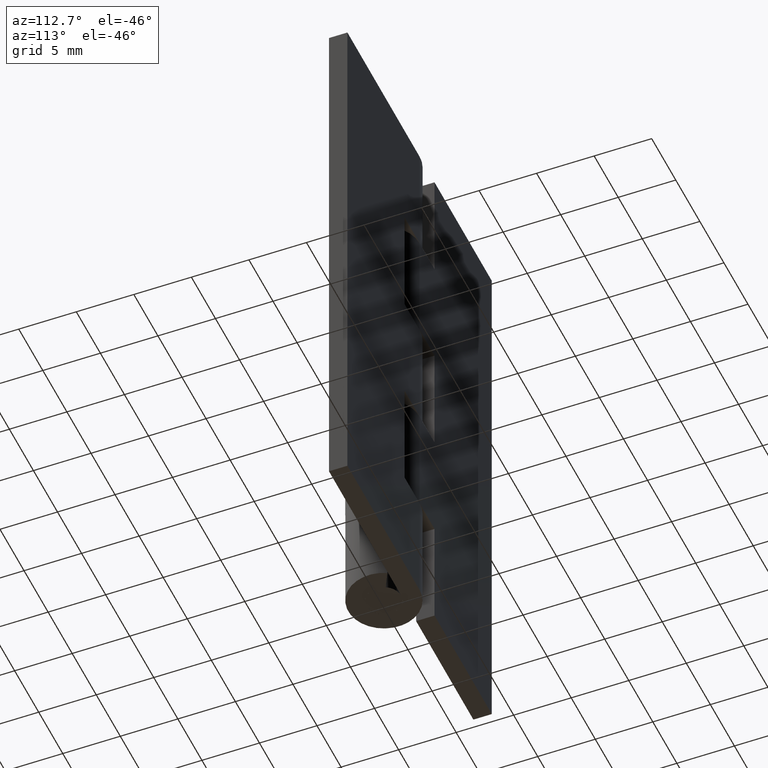
[diagram: clean part render]
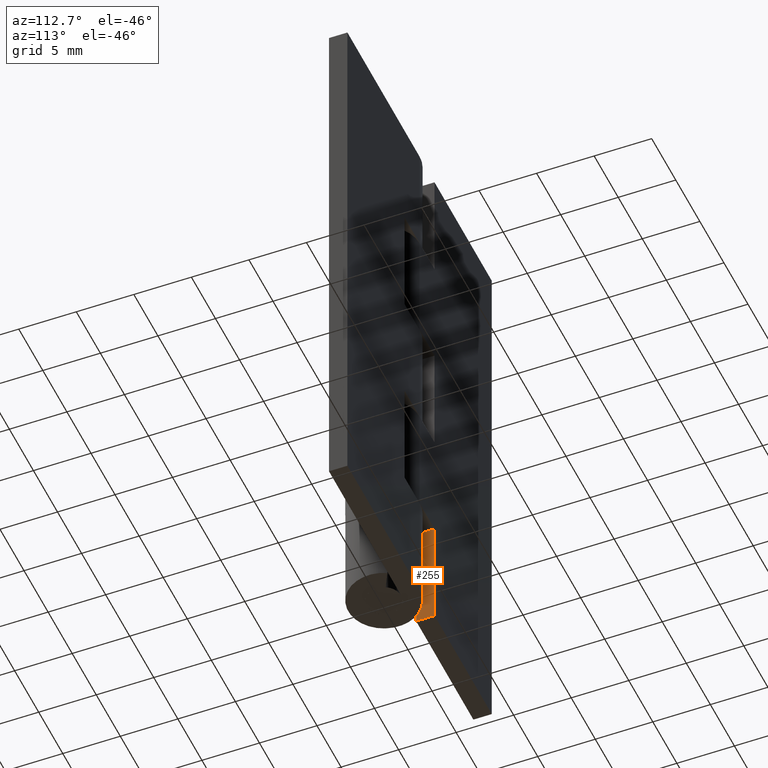
[diagram: same view with one face highlighted and labeled with its STEP entity id]
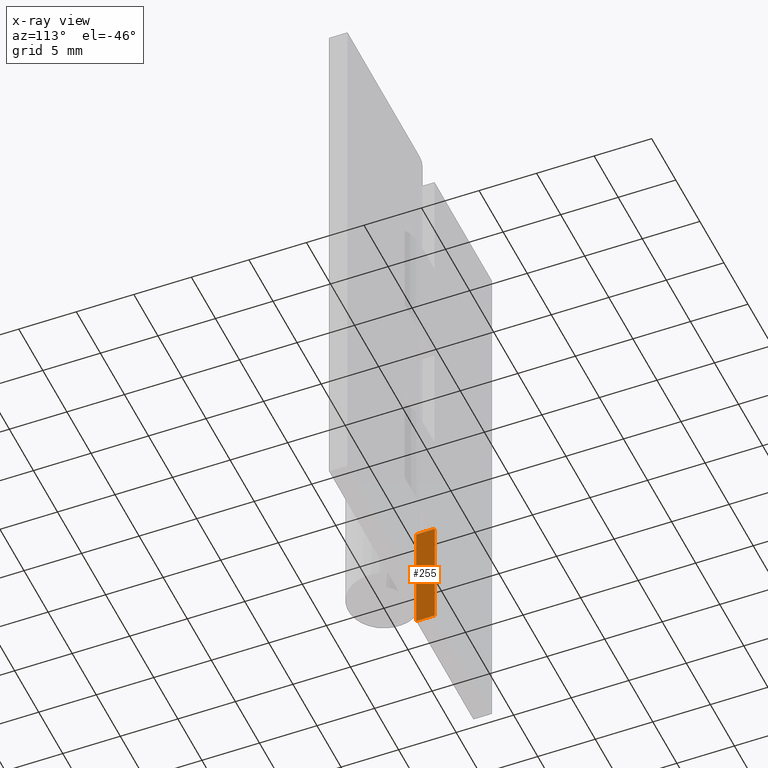
[diagram: x-ray of the same camera — body ghosted, the highlighted face saturated]
A machine part, auxiliary view. The second image highlights one B-rep face of the part: STEP entity #255.
The next image is the same camera in x-ray: the body ghosted, the highlighted face saturated — about 0% of this face is hidden behind the body in this view.
In plain terms, the highlighted face is a freeform B-spline surface patch.
Its self-contained STEP definition (entity closure, byte-faithful):
#220=CARTESIAN_POINT('',(-3.099998000000000,3.179917896998949,-0.499499980618065));
#221=CARTESIAN_POINT('',(-3.099998000000000,3.179917896998949,10.499500248839089));
#222=CARTESIAN_POINT('',(-3.099998000000000,1.420080060085757,-0.499499980618065));
#223=CARTESIAN_POINT('',(-3.099998000000000,1.420080060085757,10.499500248839089));
#224=B_SPLINE_SURFACE_WITH_KNOTS('',1,1,((#220,#222),(#221,#223)),.UNSPECIFIED.,.F.,.F.,.U.,(2,2),(2,2),(0.0,10.999000229457151),(0.041708334948495,0.958291687403247),.UNSPECIFIED.);
#225=CARTESIAN_POINT('',(-3.099998000000000,1.499999999999946,10.000000000000121));
#226=VERTEX_POINT('',#225);
#227=CARTESIAN_POINT('',(-3.099998000000000,1.500000000000000,0.0));
#228=VERTEX_POINT('',#227);
#229=CARTESIAN_POINT('',(-3.099998000000000,1.499999999999946,10.000000000000121));
#230=CARTESIAN_POINT('',(-3.099998000000000,1.500000000000000,0.0));
#231=QUASI_UNIFORM_CURVE('',1,(#229,#230),.UNSPECIFIED.,.F.,.U.);
#232=EDGE_CURVE('',#226,#228,#231,.T.);
#233=ORIENTED_EDGE('',*,*,#232,.T.);
#234=CARTESIAN_POINT('',(-3.099998000000000,3.099998000000050,0.0));
#235=VERTEX_POINT('',#234);
#236=CARTESIAN_POINT('',(-3.099998000000000,1.500000000000000,0.0));
#237=CARTESIAN_POINT('',(-3.099998000000000,3.099998000000050,0.0));
#238=QUASI_UNIFORM_CURVE('',1,(#236,#237),.UNSPECIFIED.,.F.,.U.);
#239=EDGE_CURVE('',#228,#235,#238,.T.);
#240=ORIENTED_EDGE('',*,*,#239,.T.);
#241=CARTESIAN_POINT('',(-3.099998000000000,3.099998000000050,10.000000000000121));
#242=VERTEX_POINT('',#241);
#243=CARTESIAN_POINT('',(-3.099998000000000,3.099998000000050,0.0));
#244=CARTESIAN_POINT('',(-3.099998000000000,3.099998000000050,10.000000000000121));
#245=QUASI_UNIFORM_CURVE('',1,(#243,#244),.UNSPECIFIED.,.F.,.U.);
#246=EDGE_CURVE('',#235,#242,#245,.T.);
#247=ORIENTED_EDGE('',*,*,#246,.T.);
#248=CARTESIAN_POINT('',(-3.099998000000000,1.499999999999946,10.000000000000121));
#249=CARTESIAN_POINT('',(-3.099998000000000,3.099998000000050,10.000000000000121));
#250=QUASI_UNIFORM_CURVE('',1,(#248,#249),.UNSPECIFIED.,.F.,.U.);
#251=EDGE_CURVE('',#226,#242,#250,.T.);
#252=ORIENTED_EDGE('',*,*,#251,.F.);
#253=EDGE_LOOP('',(#233,#240,#247,#252));
#254=FACE_OUTER_BOUND('',#253,.T.);
#255=ADVANCED_FACE('',(#254),#224,.T.);